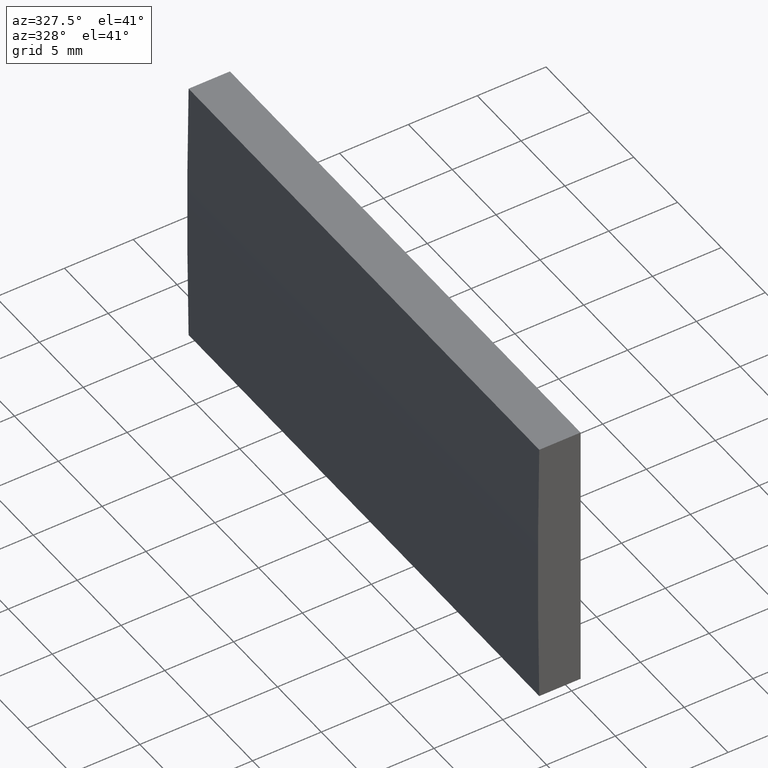
[diagram: clean part render]
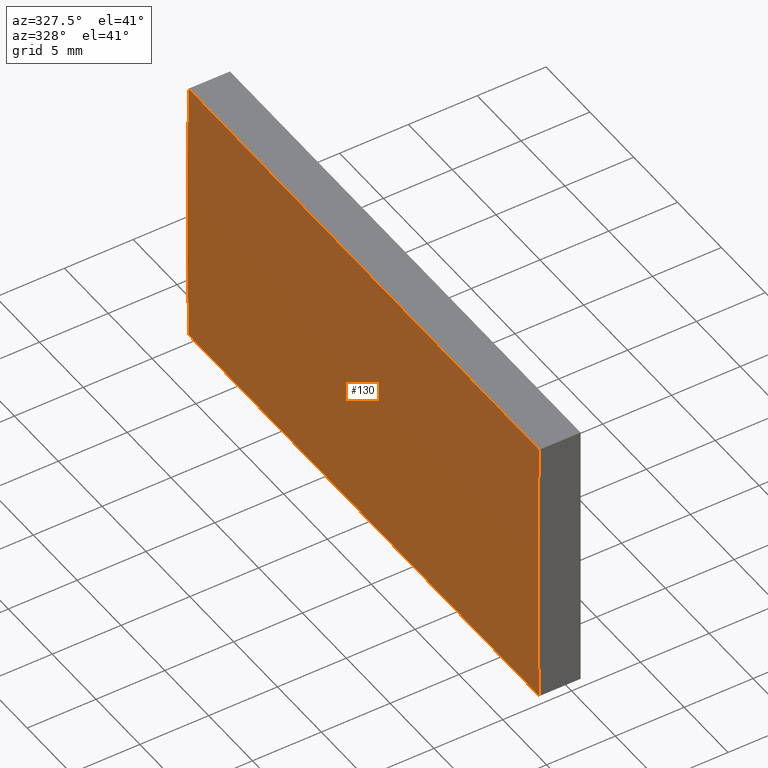
[diagram: same view with one face highlighted and labeled with its STEP entity id]
A machine part, auxiliary view. The second image highlights one B-rep face of the part: STEP entity #130.
In plain terms, the highlighted cylindrical surface (partial cylindrical patch) has radius 516.8 mm, axis along (-0, -1, -0).
Its self-contained STEP definition (entity closure, byte-faithful):
#1 = CARTESIAN_POINT ( 'NONE',  ( -512.3480373813197300, 0.0000000000000000000, 10.00000000000000000 ) ) ;
#3 = LINE ( 'NONE', #9, #53 ) ;
#9 = CARTESIAN_POINT ( 'NONE',  ( -512.3480373813197300, 40.00000000000000000, -10.00000000000000000 ) ) ;
#11 = VERTEX_POINT ( 'NONE', #188 ) ;
#12 = EDGE_CURVE ( 'NONE', #121, #11, #14, .T. ) ;
#13 = CARTESIAN_POINT ( 'NONE',  ( -512.3480373813197300, 0.0000000000000000000, -10.00000000000000000 ) ) ;
#14 = CIRCLE ( 'NONE', #198, 516.7999999999998400 ) ;
#20 = AXIS2_PLACEMENT_3D ( 'NONE', #80, #202, #155 ) ;
#28 = ORIENTED_EDGE ( 'NONE', *, *, #163, .T. ) ;
#31 = CARTESIAN_POINT ( 'NONE',  ( -512.3480373813197300, 40.00000000000000000, -10.00000000000000000 ) ) ;
#32 = DIRECTION ( 'NONE',  ( 0.0000000000000000000, 1.000000000000000000, 0.0000000000000000000 ) ) ;
#41 = LINE ( 'NONE', #107, #76 ) ;
#48 = AXIS2_PLACEMENT_3D ( 'NONE', #191, #71, #181 ) ;
#49 = CYLINDRICAL_SURFACE ( 'NONE', #48, 516.7999999999998400 ) ;
#53 = VECTOR ( 'NONE', #62, 1000.000000000000000 ) ;
#58 = FACE_OUTER_BOUND ( 'NONE', #199, .T. ) ;
#62 = DIRECTION ( 'NONE',  ( -0.0000000000000000000, -1.000000000000000000, -0.0000000000000000000 ) ) ;
#64 = CIRCLE ( 'NONE', #20, 516.7999999999998400 ) ;
#71 = DIRECTION ( 'NONE',  ( -0.0000000000000000000, -1.000000000000000000, -0.0000000000000000000 ) ) ;
#76 = VECTOR ( 'NONE', #88, 1000.000000000000000 ) ;
#80 = CARTESIAN_POINT ( 'NONE',  ( 4.355204334851265500, 0.0000000000000000000, 4.286263797015675000E-017 ) ) ;
#88 = DIRECTION ( 'NONE',  ( -0.0000000000000000000, -1.000000000000000000, -0.0000000000000000000 ) ) ;
#95 = DIRECTION ( 'NONE',  ( 0.0000000000000000000, 0.0000000000000000000, 1.000000000000000000 ) ) ;
#99 = EDGE_CURVE ( 'NONE', #11, #145, #41, .T. ) ;
#101 = ORIENTED_EDGE ( 'NONE', *, *, #180, .T. ) ;
#107 = CARTESIAN_POINT ( 'NONE',  ( -512.3480373813197300, 40.00000000000000000, 10.00000000000000000 ) ) ;
#121 = VERTEX_POINT ( 'NONE', #31 ) ;
#130 = ADVANCED_FACE ( 'NONE', ( #58 ), #49, .T. ) ;
#145 = VERTEX_POINT ( 'NONE', #1 ) ;
#155 = DIRECTION ( 'NONE',  ( 0.0000000000000000000, 0.0000000000000000000, 1.000000000000000000 ) ) ;
#158 = ORIENTED_EDGE ( 'NONE', *, *, #99, .F. ) ;
#163 = EDGE_CURVE ( 'NONE', #121, #171, #3, .T. ) ;
#171 = VERTEX_POINT ( 'NONE', #13 ) ;
#180 = EDGE_CURVE ( 'NONE', #171, #145, #64, .T. ) ;
#181 = DIRECTION ( 'NONE',  ( 0.0000000000000000000, 0.0000000000000000000, -1.000000000000000000 ) ) ;
#188 = CARTESIAN_POINT ( 'NONE',  ( -512.3480373813197300, 40.00000000000000000, 10.00000000000000000 ) ) ;
#191 = CARTESIAN_POINT ( 'NONE',  ( 4.355204334851265500, 40.00000000000000000, 4.286263797015675000E-017 ) ) ;
#196 = CARTESIAN_POINT ( 'NONE',  ( 4.355204334851265500, 40.00000000000000000, 4.286263797015675000E-017 ) ) ;
#198 = AXIS2_PLACEMENT_3D ( 'NONE', #196, #32, #95 ) ;
#199 = EDGE_LOOP ( 'NONE', ( #101, #158, #204, #28 ) ) ;
#202 = DIRECTION ( 'NONE',  ( 0.0000000000000000000, 1.000000000000000000, 0.0000000000000000000 ) ) ;
#204 = ORIENTED_EDGE ( 'NONE', *, *, #12, .F. ) ;